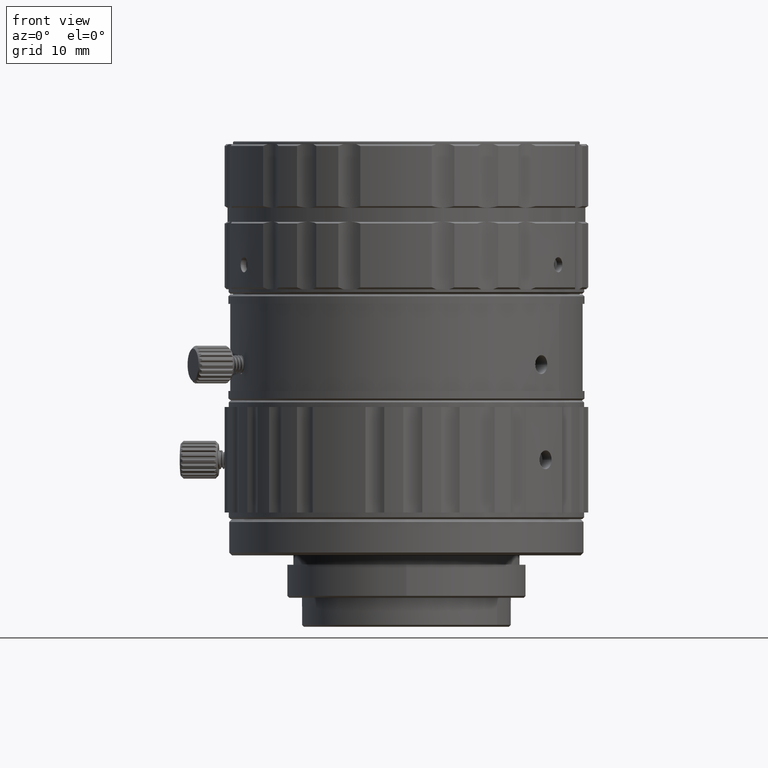
[diagram: clean part render]
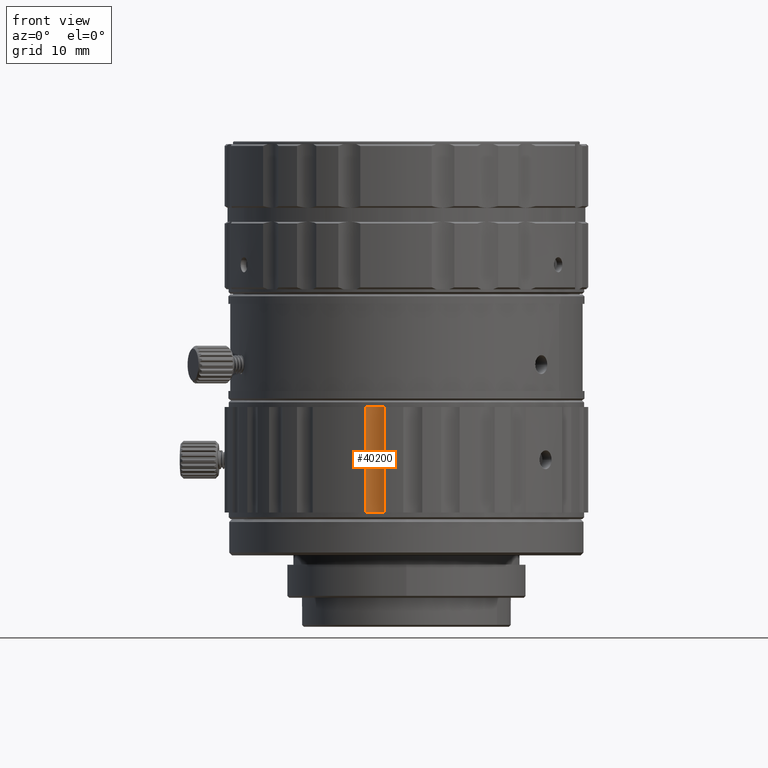
[diagram: same view with one face highlighted and labeled with its STEP entity id]
A machine part, front view. The second image highlights one B-rep face of the part: STEP entity #40200.
In plain terms, the highlighted cylindrical surface (edge-blend (fillet) strip) has radius 2 mm, axis along (0, 0, -1).
Its self-contained STEP definition (entity closure, byte-faithful):
#1650 = CIRCLE ( 'NONE', #7293, 2.000000000000000000 ) ;
#2775 = CIRCLE ( 'NONE', #23018, 2.000000000000000444 ) ;
#2876 = DIRECTION ( 'NONE',  ( 0.6470636623810869237, 0.7624359755585873311, 0.000000000000000000 ) ) ;
#3049 = EDGE_CURVE ( 'NONE', #43261, #9064, #2775, .T. ) ;
#3132 = DIRECTION ( 'NONE',  ( 0.000000000000000000, 0.000000000000000000, 1.000000000000000000 ) ) ;
#3784 = DIRECTION ( 'NONE',  ( -0.3472724870810391384, 0.9377642666025133300, 0.000000000000000000 ) ) ;
#5282 = AXIS2_PLACEMENT_3D ( 'NONE', #8261, #12576, #46555 ) ;
#5720 = VERTEX_POINT ( 'NONE', #25172 ) ;
#7096 = DIRECTION ( 'NONE',  ( 0.000000000000000000, 0.000000000000000000, -1.000000000000000000 ) ) ;
#7293 = AXIS2_PLACEMENT_3D ( 'NONE', #34487, #7096, #3784 ) ;
#8261 = CARTESIAN_POINT ( 'NONE',  ( -3.646611731007249446, -20.68096281325169983, 2.799391213819999891 ) ) ;
#9064 = VERTEX_POINT ( 'NONE', #22253 ) ;
#12172 = EDGE_CURVE ( 'NONE', #40696, #43261, #26209, .T. ) ;
#12576 = DIRECTION ( 'NONE',  ( 0.000000000000000000, 0.000000000000000000, -1.000000000000000000 ) ) ;
#12646 = DIRECTION ( 'NONE',  ( -2.112013977881419938E-14, 1.697805610740759987E-15, 1.000000000000000000 ) ) ;
#12862 = ORIENTED_EDGE ( 'NONE', *, *, #3049, .T. ) ;
#13608 = VECTOR ( 'NONE', #37378, 1000.000000000000000 ) ;
#16702 = EDGE_LOOP ( 'NONE', ( #46075, #12862, #36454, #21821 ) ) ;
#20188 = EDGE_CURVE ( 'NONE', #5720, #9064, #20764, .T. ) ;
#20764 = LINE ( 'NONE', #35736, #41086 ) ;
#21821 = ORIENTED_EDGE ( 'NONE', *, *, #36537, .T. ) ;
#22253 = CARTESIAN_POINT ( 'NONE',  ( -4.341156705172200425, -18.80543428004690298, 14.00000000000000000 ) ) ;
#23018 = AXIS2_PLACEMENT_3D ( 'NONE', #34318, #3132, #2876 ) ;
#25172 = CARTESIAN_POINT ( 'NONE',  ( -4.341156705172200425, -18.80543428004690298, 2.799391213819999891 ) ) ;
#25712 = CARTESIAN_POINT ( 'NONE',  ( -2.352484406253189775, -19.15609086213379797, 2.799391213819999891 ) ) ;
#26209 = LINE ( 'NONE', #25712, #13608 ) ;
#31617 = FACE_OUTER_BOUND ( 'NONE', #16702, .T. ) ;
#34318 = CARTESIAN_POINT ( 'NONE',  ( -3.646611731007249446, -20.68096281325169983, 14.00000000000000000 ) ) ;
#34487 = CARTESIAN_POINT ( 'NONE',  ( -3.646611731007249446, -20.68096281325169983, 2.799391213819999891 ) ) ;
#35736 = CARTESIAN_POINT ( 'NONE',  ( -4.341156705163210283, -18.80543428004250117, 2.799391213819999891 ) ) ;
#36454 = ORIENTED_EDGE ( 'NONE', *, *, #20188, .F. ) ;
#36537 = EDGE_CURVE ( 'NONE', #5720, #40696, #1650, .T. ) ;
#37378 = DIRECTION ( 'NONE',  ( -3.243972032719510411E-14, 4.646608621996460456E-15, 1.000000000000000000 ) ) ;
#40200 = ADVANCED_FACE ( 'NONE', ( #31617 ), #43509, .F. ) ;
#40696 = VERTEX_POINT ( 'NONE', #48688 ) ;
#41086 = VECTOR ( 'NONE', #12646, 1000.000000000000000 ) ;
#43261 = VERTEX_POINT ( 'NONE', #46714 ) ;
#43509 = CYLINDRICAL_SURFACE ( 'NONE', #5282, 2.000000000000000000 ) ;
#46075 = ORIENTED_EDGE ( 'NONE', *, *, #12172, .T. ) ;
#46555 = DIRECTION ( 'NONE',  ( 0.8987940462991900192, 0.4383711467890304969, 0.000000000000000000 ) ) ;
#46714 = CARTESIAN_POINT ( 'NONE',  ( -2.352484406244200077, -19.15609086212939971, 14.00000000000000000 ) ) ;
#48688 = CARTESIAN_POINT ( 'NONE',  ( -2.352484406239819581, -19.15609086213839873, 2.799391213819999891 ) ) ;